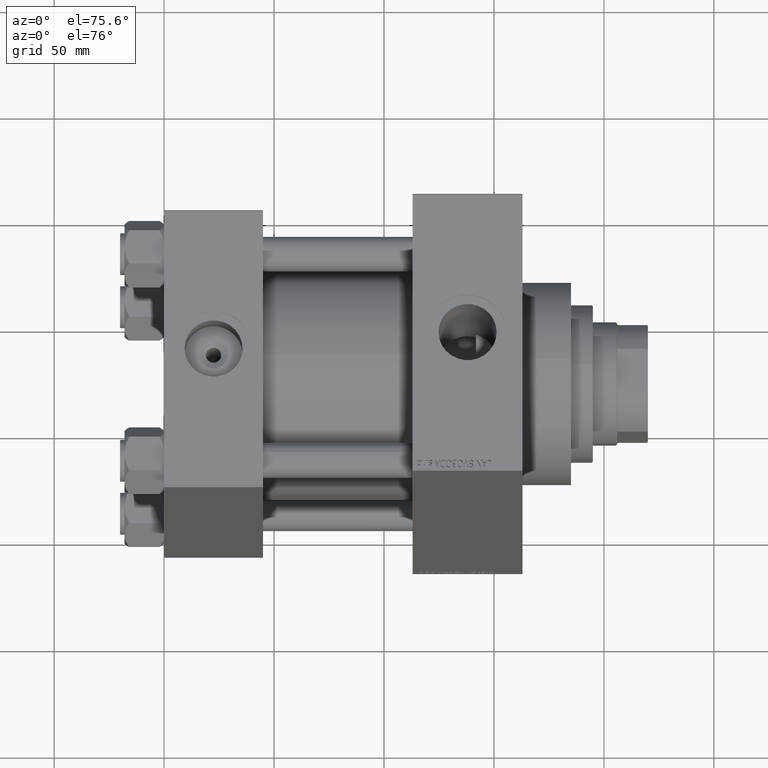
[diagram: clean part render]
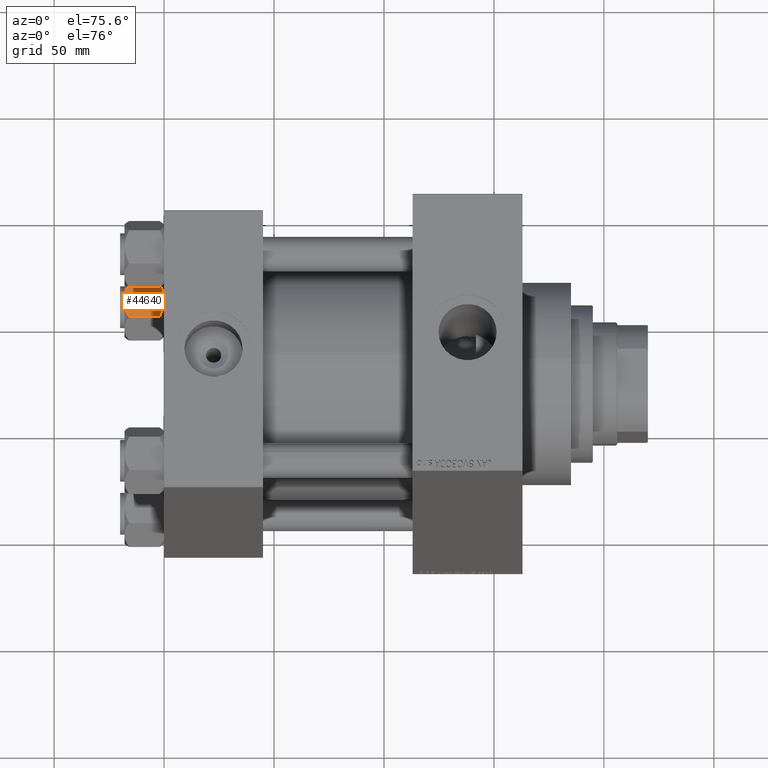
[diagram: same view with one face highlighted and labeled with its STEP entity id]
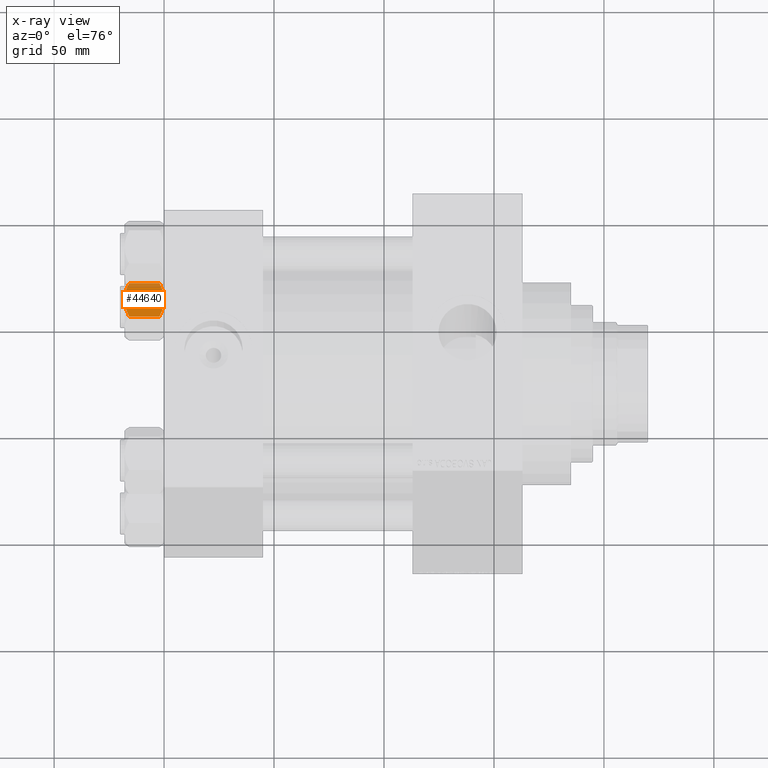
[diagram: x-ray of the same camera — body ghosted, the highlighted face saturated]
A machine part, auxiliary view. The second image highlights one B-rep face of the part: STEP entity #44640.
The next image is the same camera in x-ray: the body ghosted, the highlighted face saturated — about 12% of this face is hidden behind the body in this view.
In plain terms, the highlighted planar face has unit normal (0, -0, -1).
Its self-contained STEP definition (entity closure, byte-faithful):
#74 = CARTESIAN_POINT ( 'NONE',  ( -7.809999999999996945, 13.52731680711293727, -16.00000000000000000 ) ) ;
#1121 = CARTESIAN_POINT ( 'NONE',  ( -3.287826776903158166, 13.52731680711293905, -0.3804584453753378503 ) ) ;
#1703 = ORIENTED_EDGE ( 'NONE', *, *, #21253, .F. ) ;
#2065 = ORIENTED_EDGE ( 'NONE', *, *, #46881, .F. ) ;
#3682 = CARTESIAN_POINT ( 'NONE',  ( -1.502314598737160017E-15, 13.52731680711293727, -18.00000000000000000 ) ) ;
#4047 = CARTESIAN_POINT ( 'NONE',  ( -7.622943475354648335, 13.52731680711293727, -2.000000000000000000 ) ) ;
#4314 = CARTESIAN_POINT ( 'NONE',  ( -7.809999999999996945, 13.52731680711293727, -18.00000000000000000 ) ) ;
#4520 = CARTESIAN_POINT ( 'NONE',  ( -1.333889873825134353, 13.52731680711293905, -0.06156641003439419085 ) ) ;
#4565 = DIRECTION ( 'NONE',  ( 1.110578409716265846E-16, -1.000000000000000000, 0.000000000000000000 ) ) ;
#5472 = VECTOR ( 'NONE', #16218, 1000.000000000000000 ) ;
#6272 = CARTESIAN_POINT ( 'NONE',  ( 7.622943475354644782, 13.52731680711293727, -2.000000000000000000 ) ) ;
#6511 = CARTESIAN_POINT ( 'NONE',  ( 6.427364677720470709, 13.52731680711294082, -1.438506937155140442 ) ) ;
#7077 = CARTESIAN_POINT ( 'NONE',  ( 5.184073258379406468, 13.52731680711293905, -17.05185620934990709 ) ) ;
#7201 = DIRECTION ( 'NONE',  ( -0.000000000000000000, -0.000000000000000000, 1.000000000000000000 ) ) ;
#7269 = CARTESIAN_POINT ( 'NONE',  ( -4.553769687922306630, 13.52731680711293727, -17.26727080048548046 ) ) ;
#7306 = CARTESIAN_POINT ( 'NONE',  ( 7.030203932307582448, 13.52731680711293727, -16.29099812210859710 ) ) ;
#7429 = CARTESIAN_POINT ( 'NONE',  ( 7.810000000000001386, 13.52731680711293905, -18.00000000000000000 ) ) ;
#7584 = VERTEX_POINT ( 'NONE', #24772 ) ;
#7886 = CARTESIAN_POINT ( 'NONE',  ( -7.622943475354648335, 13.52731680711293727, -16.00000000000000000 ) ) ;
#8142 = CARTESIAN_POINT ( 'NONE',  ( -4.557734399832416905, 13.52731680711293905, -0.7341470174115153347 ) ) ;
#8251 = DIRECTION ( 'NONE',  ( 1.000000000000000000, 1.110578409716265846E-16, 0.000000000000000000 ) ) ;
#8315 = EDGE_CURVE ( 'NONE', #29147, #10859, #8393, .T. ) ;
#8393 = LINE ( 'NONE', #16348, #37583 ) ;
#8730 = CARTESIAN_POINT ( 'NONE',  ( -7.809999999999996945, 13.52731680711293727, -16.00000000000000000 ) ) ;
#9221 = CARTESIAN_POINT ( 'NONE',  ( 7.810000000000000497, 13.52731680711293905, -16.00000000000000000 ) ) ;
#9416 = EDGE_CURVE ( 'NONE', #10859, #7584, #29431, .T. ) ;
#10201 = FACE_OUTER_BOUND ( 'NONE', #11708, .T. ) ;
#10859 = VERTEX_POINT ( 'NONE', #7886 ) ;
#11099 = LINE ( 'NONE', #32821, #30026 ) ;
#11708 = EDGE_LOOP ( 'NONE', ( #44516, #23389, #12058, #15128, #30102, #1703, #2065, #18469, #37969, #37118 ) ) ;
#12058 = ORIENTED_EDGE ( 'NONE', *, *, #30139, .F. ) ;
#12243 = CARTESIAN_POINT ( 'NONE',  ( -0.6693083573771214656, 13.52731680711293727, -0.01249333081108175945 ) ) ;
#13091 = EDGE_CURVE ( 'NONE', #40731, #42588, #15971, .T. ) ;
#13725 = VERTEX_POINT ( 'NONE', #31481 ) ;
#13760 = CARTESIAN_POINT ( 'NONE',  ( 5.189513245496327976, 13.52731680711294082, -0.9501108431732597781 ) ) ;
#14001 = CARTESIAN_POINT ( 'NONE',  ( 1.335584685993415732, 13.52731680711294260, -9.825582188149885905E-16 ) ) ;
#15128 = ORIENTED_EDGE ( 'NONE', *, *, #46106, .F. ) ;
#15971 = LINE ( 'NONE', #8730, #26132 ) ;
#16218 = DIRECTION ( 'NONE',  ( -1.000000000000000000, -1.110578409716265846E-16, 0.000000000000000000 ) ) ;
#16348 = CARTESIAN_POINT ( 'NONE',  ( -7.809999999999996945, 13.52731680711293727, -16.00000000000000000 ) ) ;
#17604 = CARTESIAN_POINT ( 'NONE',  ( 4.553769687922307519, 13.52731680711294260, -0.7327291995145179815 ) ) ;
#17946 = CARTESIAN_POINT ( 'NONE',  ( 1.333889873825133021, 13.52731680711294260, -17.93843358996560511 ) ) ;
#18469 = ORIENTED_EDGE ( 'NONE', *, *, #13091, .F. ) ;
#18771 = CARTESIAN_POINT ( 'NONE',  ( -2.644243758052991389, 13.52731680711293905, -0.2408281198023998759 ) ) ;
#19516 = EDGE_CURVE ( 'NONE', #13725, #21012, #35079, .T. ) ;
#20518 = CARTESIAN_POINT ( 'NONE',  ( -1.502314598737160017E-15, 13.52731680711293727, 0.000000000000000000 ) ) ;
#20739 = CARTESIAN_POINT ( 'NONE',  ( 7.622943475354644782, 13.52731680711293727, -16.00000000000000000 ) ) ;
#21012 = VERTEX_POINT ( 'NONE', #36306 ) ;
#21234 = CARTESIAN_POINT ( 'NONE',  ( 2.638177715023106717, 13.52731680711294260, -0.2001540676698861931 ) ) ;
#21253 = EDGE_CURVE ( 'NONE', #31231, #13725, #45430, .T. ) ;
#21570 = CARTESIAN_POINT ( 'NONE',  ( 1.663410456966174067, 13.52731680711294082, -17.90195050864300441 ) ) ;
#22000 = CARTESIAN_POINT ( 'NONE',  ( -1.502314598737160017E-15, 13.52731680711293727, -18.00000000000000000 ) ) ;
#22038 = CARTESIAN_POINT ( 'NONE',  ( 7.622943475354644782, 13.52731680711293727, -16.00000000000000000 ) ) ;
#22238 = CARTESIAN_POINT ( 'NONE',  ( -7.030888348548059774, 13.52731680711293549, -16.29066211644969897 ) ) ;
#22634 = CARTESIAN_POINT ( 'NONE',  ( -6.422751913021828685, 13.52731680711293905, -1.436509110925899391 ) ) ;
#22863 = CARTESIAN_POINT ( 'NONE',  ( -7.030203932307583337, 13.52731680711293372, -1.709001877891392907 ) ) ;
#23389 = ORIENTED_EDGE ( 'NONE', *, *, #39697, .T. ) ;
#24497 = DIRECTION ( 'NONE',  ( -1.000000000000000000, -1.110578409716265846E-16, 0.000000000000000000 ) ) ;
#24772 = CARTESIAN_POINT ( 'NONE',  ( -1.502314598737160017E-15, 13.52731680711293727, -18.00000000000000000 ) ) ;
#25098 = DIRECTION ( 'NONE',  ( -0.000000000000000000, -0.000000000000000000, 1.000000000000000000 ) ) ;
#25157 = PLANE ( 'NONE',  #44697 ) ;
#25766 = B_SPLINE_CURVE_WITH_KNOTS ( 'NONE', 3,
 ( #3682, #29292, #32194, #17946, #21570, #46917, #40159, #33147, #7077, #40388, #7306, #22038 ),
 .UNSPECIFIED., .F., .F.,
 ( 4, 2, 2, 2, 2, 4 ),
 ( 0.02774433486126544335, 0.02873404020403548184, 0.02972374554680552033, 0.03170315623234559732, 0.03368256691788566737, 0.03566197760342574435 ),
 .UNSPECIFIED. ) ;
#26014 = CARTESIAN_POINT ( 'NONE',  ( -0.3330234424833839468, 13.52731680711293727, -8.499975625696903903E-16 ) ) ;
#26106 = CARTESIAN_POINT ( 'NONE',  ( -6.427364677720475150, 13.52731680711293905, -16.56149306284486755 ) ) ;
#26132 = VECTOR ( 'NONE', #8251, 1000.000000000000000 ) ;
#28790 = DIRECTION ( 'NONE',  ( 1.000000000000000000, 1.110578409716265846E-16, 0.000000000000000000 ) ) ;
#29147 = VERTEX_POINT ( 'NONE', #74 ) ;
#29253 = CARTESIAN_POINT ( 'NONE',  ( -5.189513245496333305, 13.52731680711293727, -17.04988915682674033 ) ) ;
#29292 = CARTESIAN_POINT ( 'NONE',  ( 0.3330234424833817819, 13.52731680711293905, -18.00000000000000355 ) ) ;
#29431 = B_SPLINE_CURVE_WITH_KNOTS ( 'NONE', 3,
 ( #40117, #22238, #26106, #29253, #7269, #32636, #43966, #22000 ),
 .UNSPECIFIED., .F., .F.,
 ( 4, 2, 2, 4 ),
 ( 0.01980594295952728401, 0.02179054093496182384, 0.02377513891039636368, 0.02774433486126544335 ),
 .UNSPECIFIED. ) ;
#29646 = CARTESIAN_POINT ( 'NONE',  ( -1.502314598737160017E-15, 13.52731680711293727, 0.000000000000000000 ) ) ;
#30026 = VECTOR ( 'NONE', #25098, 1000.000000000000000 ) ;
#30102 = ORIENTED_EDGE ( 'NONE', *, *, #19516, .F. ) ;
#30139 = EDGE_CURVE ( 'NONE', #30629, #41562, #31266, .T. ) ;
#30629 = VERTEX_POINT ( 'NONE', #33833 ) ;
#31194 = CARTESIAN_POINT ( 'NONE',  ( -7.809999999999996945, 13.52731680711293727, -1.999999999999998224 ) ) ;
#31231 = VERTEX_POINT ( 'NONE', #43425 ) ;
#31266 = LINE ( 'NONE', #45975, #32731 ) ;
#31481 = CARTESIAN_POINT ( 'NONE',  ( 7.622943475354644782, 13.52731680711293727, -2.000000000000000000 ) ) ;
#31667 = VECTOR ( 'NONE', #7201, 1000.000000000000000 ) ;
#32194 = CARTESIAN_POINT ( 'NONE',  ( 0.6693083573771205774, 13.52731680711293727, -17.98750666918891739 ) ) ;
#32636 = CARTESIAN_POINT ( 'NONE',  ( -2.638177715023110714, 13.52731680711293905, -17.79984593233011481 ) ) ;
#32731 = VECTOR ( 'NONE', #24497, 1000.000000000000000 ) ;
#32821 = CARTESIAN_POINT ( 'NONE',  ( -7.809999999999996945, 13.52731680711293727, -18.00000000000000000 ) ) ;
#33147 = CARTESIAN_POINT ( 'NONE',  ( 4.557734399832415129, 13.52731680711294260, -17.26585298258848411 ) ) ;
#33833 = CARTESIAN_POINT ( 'NONE',  ( -7.622943475354648335, 13.52731680711293727, -2.000000000000000000 ) ) ;
#35079 = B_SPLINE_CURVE_WITH_KNOTS ( 'NONE', 3,
 ( #6272, #43206, #6511, #13760, #17604, #21234, #14001, #20518 ),
 .UNSPECIFIED., .F., .F.,
 ( 4, 2, 2, 4 ),
 ( 0.01980594295952729095, 0.02179054093496183425, 0.02377513891039637409, 0.02774433486126545723 ),
 .UNSPECIFIED. ) ;
#36306 = CARTESIAN_POINT ( 'NONE',  ( -1.502314598737160017E-15, 13.52731680711293727, 0.000000000000000000 ) ) ;
#36808 = EDGE_CURVE ( 'NONE', #7584, #40731, #25766, .T. ) ;
#37118 = ORIENTED_EDGE ( 'NONE', *, *, #9416, .F. ) ;
#37583 = VECTOR ( 'NONE', #45084, 1000.000000000000000 ) ;
#37846 = CARTESIAN_POINT ( 'NONE',  ( -5.184073258379408244, 13.52731680711293727, -0.9481437906500859158 ) ) ;
#37969 = ORIENTED_EDGE ( 'NONE', *, *, #36808, .F. ) ;
#38803 = B_SPLINE_CURVE_WITH_KNOTS ( 'NONE', 3,
 ( #29646, #26014, #12243, #4520, #40743, #18771, #1121, #8142, #37846, #22634, #22863, #4047 ),
 .UNSPECIFIED., .F., .F.,
 ( 4, 2, 2, 2, 2, 4 ),
 ( 0.02774433486126545723, 0.02873404020403549572, 0.02972374554680553421, 0.03170315623234561120, 0.03368256691788568125, 0.03566197760342575823 ),
 .UNSPECIFIED. ) ;
#39697 = EDGE_CURVE ( 'NONE', #29147, #41562, #11099, .T. ) ;
#40117 = CARTESIAN_POINT ( 'NONE',  ( -7.622943475354648335, 13.52731680711293727, -16.00000000000000000 ) ) ;
#40159 = CARTESIAN_POINT ( 'NONE',  ( 3.287826776903156833, 13.52731680711294082, -17.61954155462466431 ) ) ;
#40388 = CARTESIAN_POINT ( 'NONE',  ( 6.422751913021828685, 13.52731680711293905, -16.56349088907410305 ) ) ;
#40731 = VERTEX_POINT ( 'NONE', #20739 ) ;
#40743 = CARTESIAN_POINT ( 'NONE',  ( -1.663410456966174955, 13.52731680711293905, -0.09804949135699160545 ) ) ;
#41562 = VERTEX_POINT ( 'NONE', #41583 ) ;
#41583 = CARTESIAN_POINT ( 'NONE',  ( -7.809999999999996945, 13.52731680711293727, -1.999999999999998224 ) ) ;
#42588 = VERTEX_POINT ( 'NONE', #9221 ) ;
#43206 = CARTESIAN_POINT ( 'NONE',  ( 7.030888348548061551, 13.52731680711294082, -1.709337883550299697 ) ) ;
#43425 = CARTESIAN_POINT ( 'NONE',  ( 7.810000000000000497, 13.52731680711293905, -1.999999999999998224 ) ) ;
#43893 = LINE ( 'NONE', #7429, #31667 ) ;
#43966 = CARTESIAN_POINT ( 'NONE',  ( -1.335584685993416398, 13.52731680711293905, -18.00000000000000000 ) ) ;
#44516 = ORIENTED_EDGE ( 'NONE', *, *, #8315, .F. ) ;
#44640 = ADVANCED_FACE ( 'NONE', ( #10201 ), #25157, .F. ) ;
#44697 = AXIS2_PLACEMENT_3D ( 'NONE', #4314, #4565, #28790 ) ;
#45084 = DIRECTION ( 'NONE',  ( 1.000000000000000000, 1.110578409716265846E-16, 0.000000000000000000 ) ) ;
#45430 = LINE ( 'NONE', #31194, #5472 ) ;
#45975 = CARTESIAN_POINT ( 'NONE',  ( -7.809999999999996945, 13.52731680711293727, -1.999999999999998224 ) ) ;
#46106 = EDGE_CURVE ( 'NONE', #21012, #30629, #38803, .T. ) ;
#46881 = EDGE_CURVE ( 'NONE', #42588, #31231, #43893, .T. ) ;
#46917 = CARTESIAN_POINT ( 'NONE',  ( 2.644243758052990945, 13.52731680711294260, -17.75917188019760218 ) ) ;